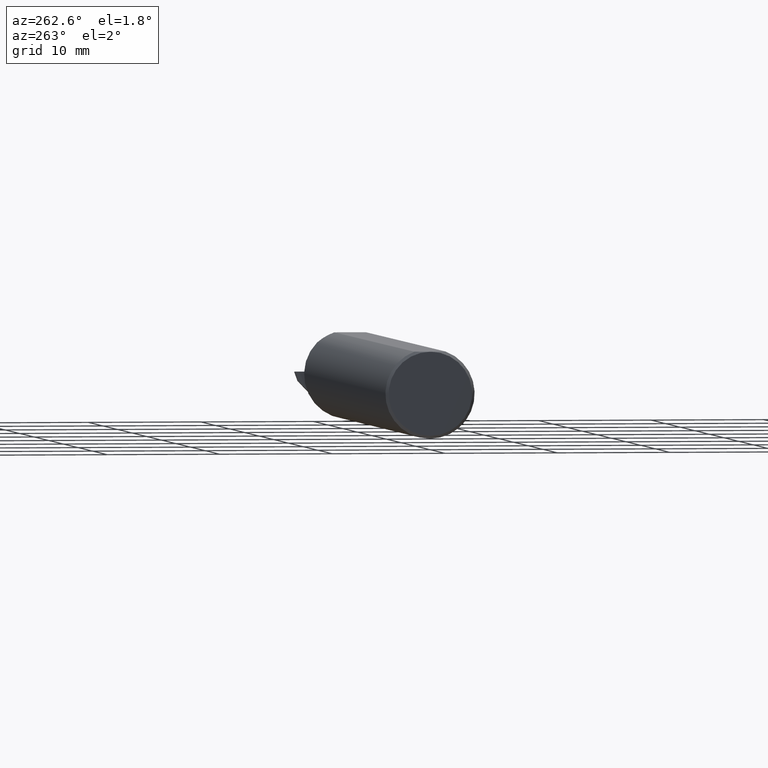
[diagram: clean part render]
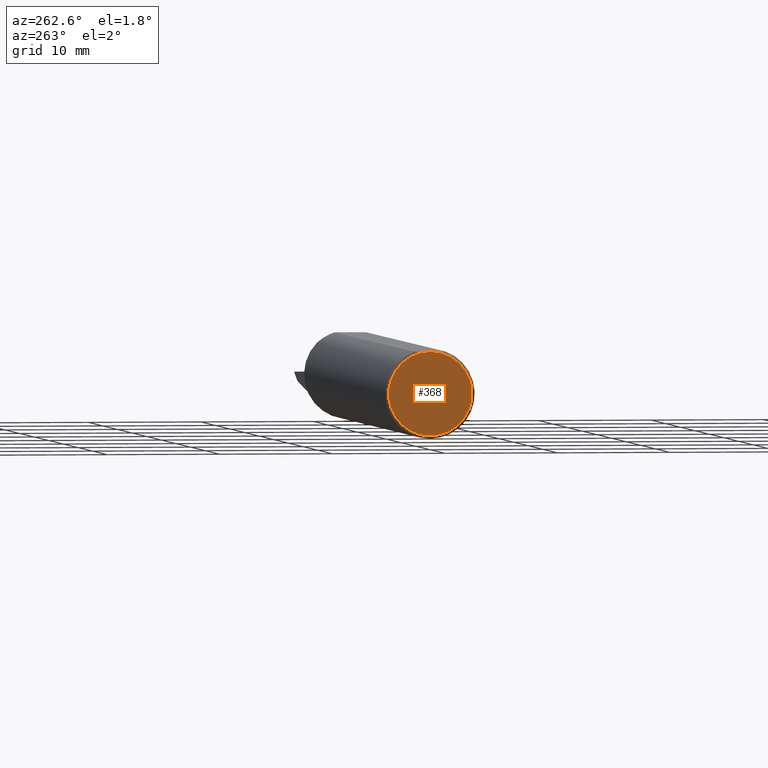
[diagram: same view with one face highlighted and labeled with its STEP entity id]
A machine part, auxiliary view. The second image highlights one B-rep face of the part: STEP entity #368.
In plain terms, the highlighted planar face has unit normal (1, 0, 0).
Its self-contained STEP definition (entity closure, byte-faithful):
#36 = CARTESIAN_POINT ( 'NONE',  ( 0.000000000000000000, 0.000000000000000000, 0.000000000000000000 ) ) ;
#53 = AXIS2_PLACEMENT_3D ( 'NONE', #84, #462, #406 ) ;
#70 = ORIENTED_EDGE ( 'NONE', *, *, #249, .T. ) ;
#84 = CARTESIAN_POINT ( 'NONE',  ( 0.000000000000000000, 0.000000000000000000, 0.000000000000000000 ) ) ;
#122 = CIRCLE ( 'NONE', #53, 0.1460999999999998411 ) ;
#198 = CARTESIAN_POINT ( 'NONE',  ( 0.000000000000000000, 0.000000000000000000, 0.1460999999999998689 ) ) ;
#207 = CARTESIAN_POINT ( 'NONE',  ( 0.000000000000000000, 0.000000000000000000, 0.000000000000000000 ) ) ;
#211 = EDGE_CURVE ( 'NONE', #326, #604, #669, .T. ) ;
#249 = EDGE_CURVE ( 'NONE', #604, #326, #122, .T. ) ;
#278 = EDGE_LOOP ( 'NONE', ( #70, #606 ) ) ;
#326 = VERTEX_POINT ( 'NONE', #525 ) ;
#362 = AXIS2_PLACEMENT_3D ( 'NONE', #36, #458, #684 ) ;
#368 = ADVANCED_FACE ( 'NONE', ( #642 ), #473, .F. ) ;
#406 = DIRECTION ( 'NONE',  ( 0.000000000000000000, 0.000000000000000000, -1.000000000000000000 ) ) ;
#415 = DIRECTION ( 'NONE',  ( 1.000000000000000000, 0.000000000000000000, 0.000000000000000000 ) ) ;
#458 = DIRECTION ( 'NONE',  ( -1.000000000000000000, -0.000000000000000000, -0.000000000000000000 ) ) ;
#462 = DIRECTION ( 'NONE',  ( -1.000000000000000000, -0.000000000000000000, -0.000000000000000000 ) ) ;
#473 = PLANE ( 'NONE',  #577 ) ;
#525 = CARTESIAN_POINT ( 'NONE',  ( 0.000000000000000000, 0.000000000000000000, -0.1460999999999998411 ) ) ;
#577 = AXIS2_PLACEMENT_3D ( 'NONE', #207, #415, #636 ) ;
#604 = VERTEX_POINT ( 'NONE', #198 ) ;
#606 = ORIENTED_EDGE ( 'NONE', *, *, #211, .T. ) ;
#636 = DIRECTION ( 'NONE',  ( 0.000000000000000000, 0.000000000000000000, -1.000000000000000000 ) ) ;
#642 = FACE_OUTER_BOUND ( 'NONE', #278, .T. ) ;
#669 = CIRCLE ( 'NONE', #362, 0.1460999999999998411 ) ;
#684 = DIRECTION ( 'NONE',  ( 0.000000000000000000, 0.000000000000000000, -1.000000000000000000 ) ) ;